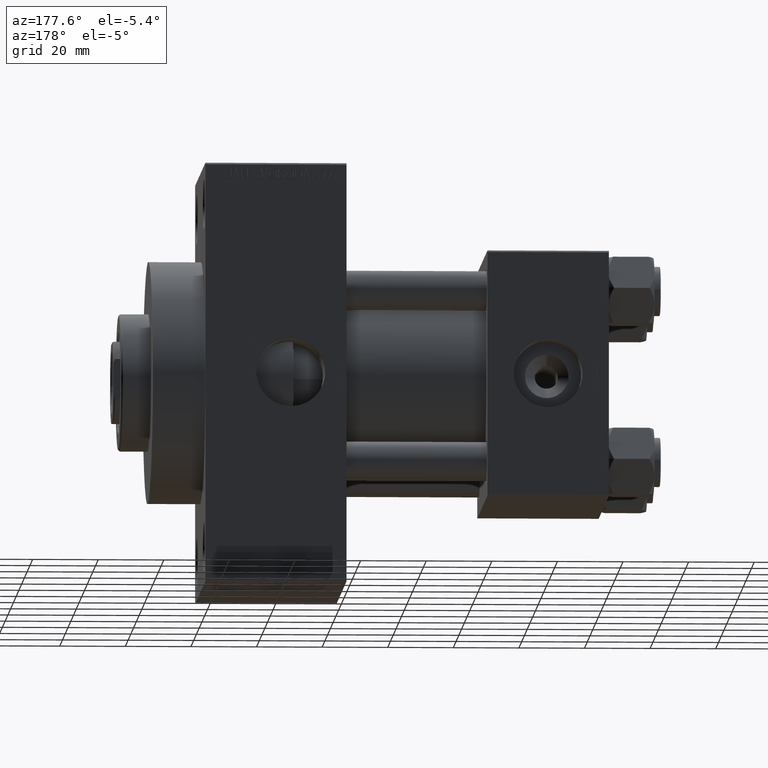
[diagram: clean part render]
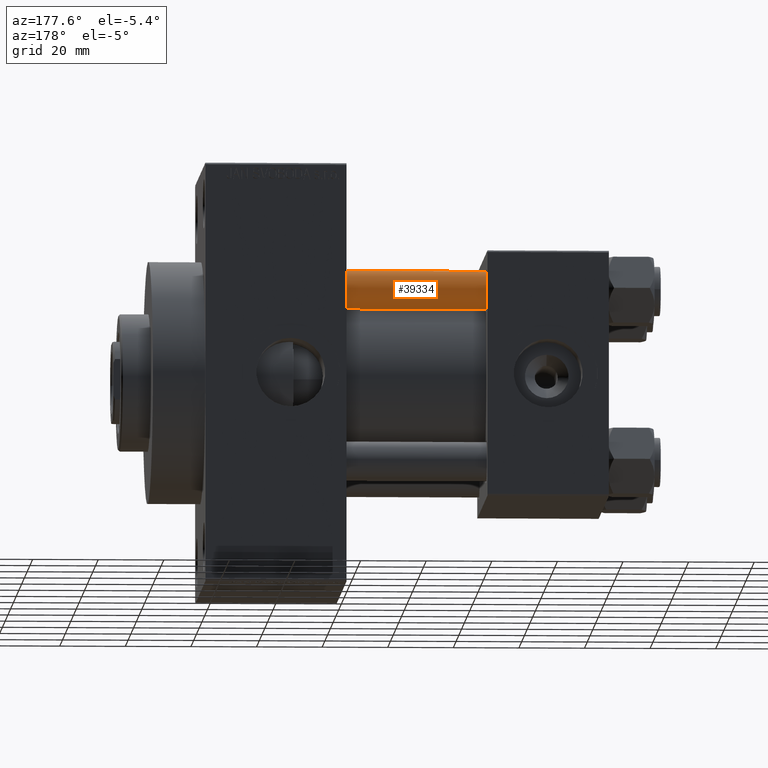
[diagram: same view with one face highlighted and labeled with its STEP entity id]
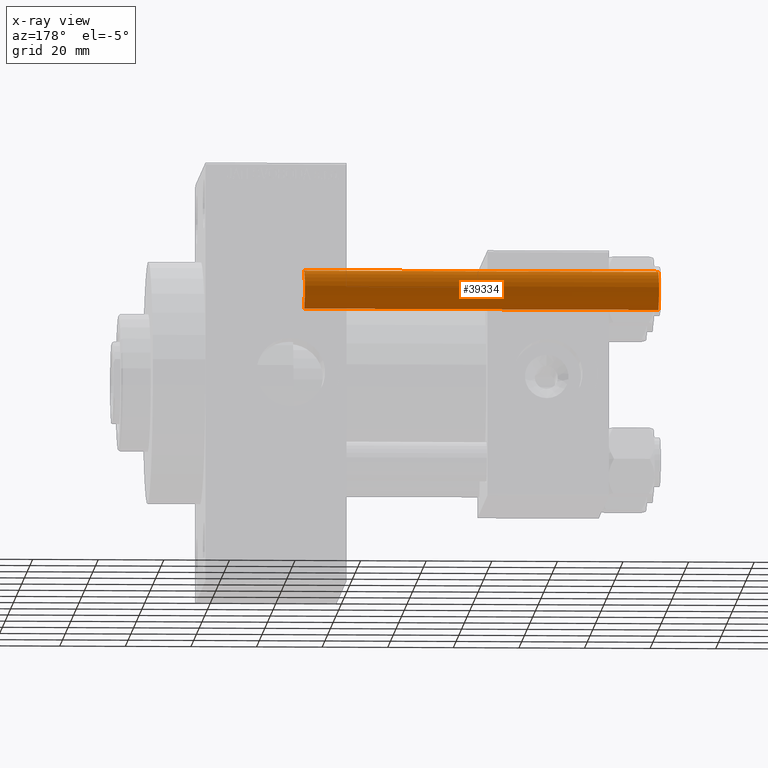
[diagram: x-ray of the same camera — body ghosted, the highlighted face saturated]
A machine part, auxiliary view. The second image highlights one B-rep face of the part: STEP entity #39334.
The next image is the same camera in x-ray: the body ghosted, the highlighted face saturated — about 0% of this face is hidden behind the body in this view.
In plain terms, the highlighted cylindrical surface (edge-blend (fillet) strip) has radius 6 mm, axis along (-1, -0, 0).
Its self-contained STEP definition (entity closure, byte-faithful):
#818 = CARTESIAN_POINT ( 'NONE',  ( 0.000000000000000000, 0.000000000000000000, 108.5000000000000142 ) ) ;
#1526 = EDGE_CURVE ( 'NONE', #16468, #17475, #39916, .T. ) ;
#3175 = CARTESIAN_POINT ( 'NONE',  ( 6.000000000000000888, 7.347880794884120722E-16, 109.0000000000000000 ) ) ;
#3443 = VECTOR ( 'NONE', #5610, 1000.000000000000000 ) ;
#3756 = EDGE_CURVE ( 'NONE', #8505, #16468, #40729, .T. ) ;
#5436 = ORIENTED_EDGE ( 'NONE', *, *, #3756, .T. ) ;
#5610 = DIRECTION ( 'NONE',  ( -0.000000000000000000, -0.000000000000000000, -1.000000000000000000 ) ) ;
#7989 = DIRECTION ( 'NONE',  ( 0.000000000000000000, 0.000000000000000000, -1.000000000000000000 ) ) ;
#8505 = VERTEX_POINT ( 'NONE', #15025 ) ;
#8577 = ORIENTED_EDGE ( 'NONE', *, *, #42473, .F. ) ;
#11867 = CARTESIAN_POINT ( 'NONE',  ( 6.000000000000000888, 7.347880794884120722E-16, 0.4999999999999865663 ) ) ;
#12769 = LINE ( 'NONE', #24224, #3443 ) ;
#15025 = CARTESIAN_POINT ( 'NONE',  ( -6.000000000000000888, 0.000000000000000000, 108.5000000000000142 ) ) ;
#16468 = VERTEX_POINT ( 'NONE', #21262 ) ;
#17475 = VERTEX_POINT ( 'NONE', #11867 ) ;
#18719 = CARTESIAN_POINT ( 'NONE',  ( 0.000000000000000000, 0.000000000000000000, 109.0000000000000000 ) ) ;
#18958 = DIRECTION ( 'NONE',  ( 1.000000000000000000, 0.000000000000000000, 0.000000000000000000 ) ) ;
#19992 = ORIENTED_EDGE ( 'NONE', *, *, #1526, .T. ) ;
#21262 = CARTESIAN_POINT ( 'NONE',  ( 6.000000000000000888, 7.347880794884120722E-16, 108.5000000000000142 ) ) ;
#21780 = DIRECTION ( 'NONE',  ( -0.000000000000000000, -0.000000000000000000, -1.000000000000000000 ) ) ;
#21840 = FACE_OUTER_BOUND ( 'NONE', #27913, .T. ) ;
#23527 = EDGE_CURVE ( 'NONE', #17475, #29592, #31805, .T. ) ;
#24224 = CARTESIAN_POINT ( 'NONE',  ( -6.000000000000000888, 0.000000000000000000, 109.0000000000000000 ) ) ;
#25885 = CYLINDRICAL_SURFACE ( 'NONE', #26292, 6.000000000000000888 ) ;
#26292 = AXIS2_PLACEMENT_3D ( 'NONE', #18719, #43106, #28772 ) ;
#27913 = EDGE_LOOP ( 'NONE', ( #5436, #19992, #44280, #8577 ) ) ;
#28772 = DIRECTION ( 'NONE',  ( -1.000000000000000000, 0.000000000000000000, 0.000000000000000000 ) ) ;
#29592 = VERTEX_POINT ( 'NONE', #41835 ) ;
#31805 = CIRCLE ( 'NONE', #36361, 6.000000000000000888 ) ;
#34413 = CARTESIAN_POINT ( 'NONE',  ( 0.000000000000000000, 0.000000000000000000, 0.4999999999999865663 ) ) ;
#36361 = AXIS2_PLACEMENT_3D ( 'NONE', #34413, #45635, #44926 ) ;
#39334 = ADVANCED_FACE ( 'NONE', ( #21840 ), #25885, .T. ) ;
#39916 = LINE ( 'NONE', #3175, #46690 ) ;
#40729 = CIRCLE ( 'NONE', #42277, 6.000000000000000888 ) ;
#41835 = CARTESIAN_POINT ( 'NONE',  ( -6.000000000000000888, 0.000000000000000000, 0.4999999999999865663 ) ) ;
#42277 = AXIS2_PLACEMENT_3D ( 'NONE', #818, #7989, #18958 ) ;
#42473 = EDGE_CURVE ( 'NONE', #8505, #29592, #12769, .T. ) ;
#43106 = DIRECTION ( 'NONE',  ( -0.000000000000000000, -0.000000000000000000, -1.000000000000000000 ) ) ;
#44280 = ORIENTED_EDGE ( 'NONE', *, *, #23527, .T. ) ;
#44926 = DIRECTION ( 'NONE',  ( 1.000000000000000000, 0.000000000000000000, 0.000000000000000000 ) ) ;
#45635 = DIRECTION ( 'NONE',  ( -0.000000000000000000, -0.000000000000000000, 1.000000000000000000 ) ) ;
#46690 = VECTOR ( 'NONE', #21780, 1000.000000000000000 ) ;